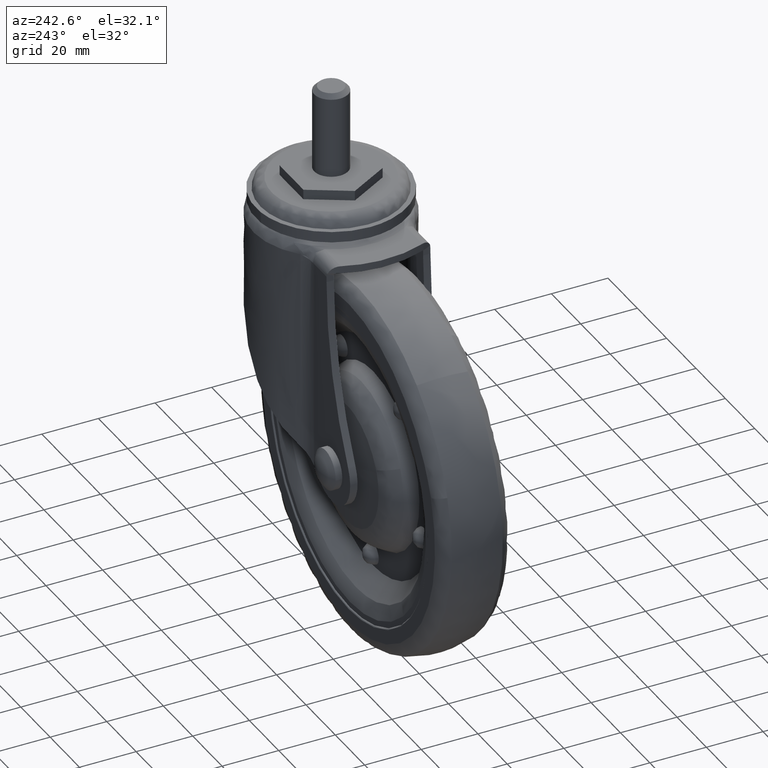
[diagram: clean part render]
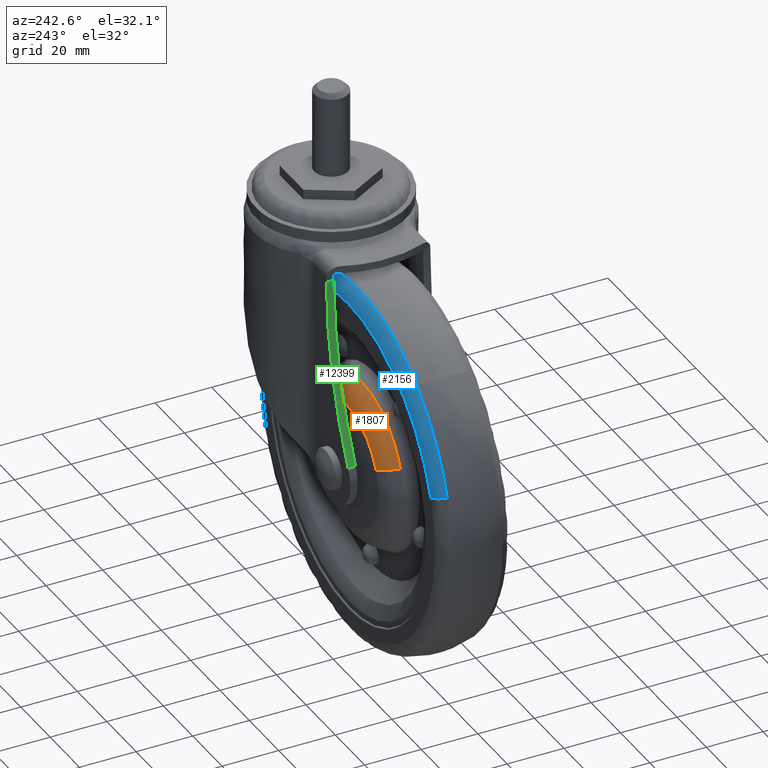
[diagram: same view with three faces highlighted in distinct colors, each labeled with its STEP entity id]
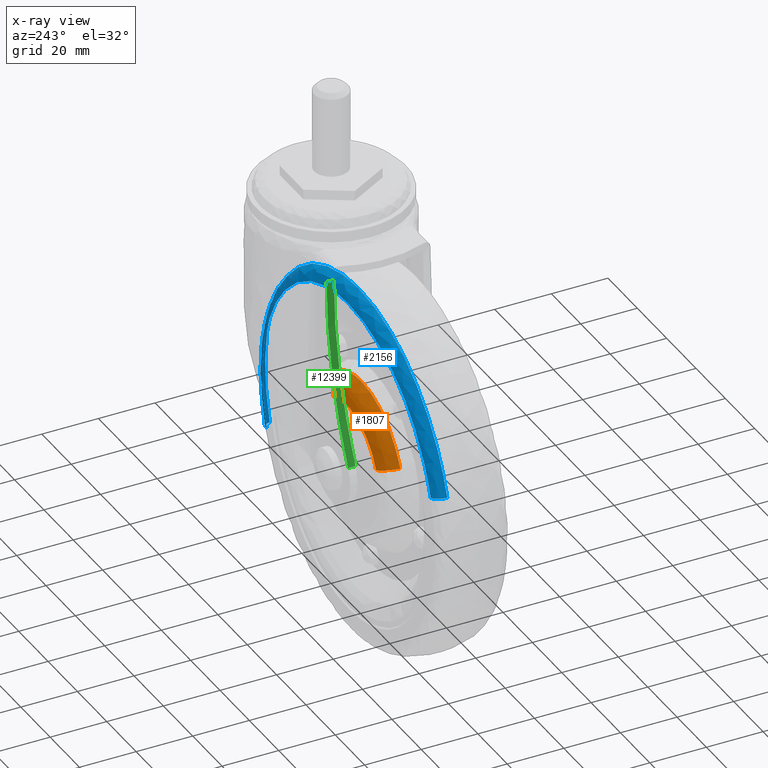
[diagram: x-ray of the same camera — body ghosted, the three highlighted faces saturated]
A machine part, auxiliary view with three faces highlighted in distinct colors.
The next image is the same camera in x-ray (body ghosted, the three faces saturated) — at least one of them is partly hidden behind the body in this view.
Their STEP definitions:

[orange] entity #1807 — the highlighted face is a freeform B-spline surface patch.
#1062=CARTESIAN_POINT('',(-23.167410312733260,8.055721030320562,-60.056697956529327));
#1063=VERTEX_POINT('',#1062);
#1077=CARTESIAN_POINT('',(-36.0,8.055721030304390,-57.056448889132753));
#1078=VERTEX_POINT('',#1077);
#1079=CARTESIAN_POINT('',(-23.167410312733264,8.055721030320562,-60.056697956529334));
#1080=CARTESIAN_POINT('',(-29.232977256312321,8.055721030304390,-57.056448889132760));
#1081=CARTESIAN_POINT('',(-36.0,8.055721030304390,-57.056448889132753));
#1089=(BOUNDED_CURVE()B_SPLINE_CURVE(2,(#1079,#1080,#1081),.UNSPECIFIED.,.F.,.U.)B_SPLINE_CURVE_WITH_KNOTS((3,3),(0.424637790836423,0.500000000000000),.UNSPECIFIED.)CURVE()GEOMETRIC_REPRESENTATION_ITEM()RATIONAL_B_SPLINE_CURVE((0.876646594193886,0.911707679924749,1.0))REPRESENTATION_ITEM(''));
#1090=EDGE_CURVE('',#1063,#1078,#1089,.T.);
#1092=CARTESIAN_POINT('',(-62.634950511475012,8.055721030587771,-74.672370692162048));
#1093=VERTEX_POINT('',#1092);
#1094=CARTESIAN_POINT('',(-36.0,8.055721030304390,-57.056448889132753));
#1095=CARTESIAN_POINT('',(-55.142916921801003,8.055721030304390,-57.056448889132760));
#1096=CARTESIAN_POINT('',(-62.634950511474997,8.055721030587771,-74.672370692162048));
#1104=(BOUNDED_CURVE()B_SPLINE_CURVE(2,(#1094,#1095,#1096),.UNSPECIFIED.,.F.,.U.)B_SPLINE_CURVE_WITH_KNOTS((3,3),(0.500000000000000,0.683550134661803),.UNSPECIFIED.)CURVE()GEOMETRIC_REPRESENTATION_ITEM()RATIONAL_B_SPLINE_CURVE((1.0,0.784957640981048,0.885683713609459))REPRESENTATION_ITEM(''));
#1105=EDGE_CURVE('',#1078,#1093,#1104,.T.);
#1666=CARTESIAN_POINT('',(-26.524519550176169,12.996321768592169,-66.843724753619142));
#1667=VERTEX_POINT('',#1666);
#1685=CARTESIAN_POINT('',(-23.167410312733260,8.055721030320562,-60.056697956529334));
#1686=CARTESIAN_POINT('',(-24.290895746203965,12.444750179472400,-62.328034753784543));
#1687=CARTESIAN_POINT('',(-26.524519550176169,12.996321768592171,-66.843724753619142));
#1695=(BOUNDED_CURVE()B_SPLINE_CURVE(2,(#1685,#1686,#1687),.UNSPECIFIED.,.F.,.U.)B_SPLINE_CURVE_WITH_KNOTS((3,3),(-1.607472699760332,-0.392717053982705),.UNSPECIFIED.)CURVE()GEOMETRIC_REPRESENTATION_ITEM()RATIONAL_B_SPLINE_CURVE((0.894848275385015,0.798179856002931,0.894818079469349))REPRESENTATION_ITEM(''));
#1696=EDGE_CURVE('',#1063,#1667,#1695,.T.);
#1702=CARTESIAN_POINT('',(-55.667192483947417,12.996301770271380,-77.635751079466559));
#1703=VERTEX_POINT('',#1702);
#1704=CARTESIAN_POINT('',(-62.634950511475004,8.055721030587771,-74.672370692162048));
#1705=CARTESIAN_POINT('',(-60.303127450765217,12.444654130910580,-75.664092663542732));
#1706=CARTESIAN_POINT('',(-55.667192483947424,12.996301770271369,-77.635751079466544));
#1714=(BOUNDED_CURVE()B_SPLINE_CURVE(2,(#1704,#1705,#1706),.UNSPECIFIED.,.F.,.U.)B_SPLINE_CURVE_WITH_KNOTS((3,3),(-1.607472699677419,-0.392740629226143),.UNSPECIFIED.)CURVE()GEOMETRIC_REPRESENTATION_ITEM()RATIONAL_B_SPLINE_CURVE((0.915440373493362,0.816549355965488,0.915405645492659))REPRESENTATION_ITEM(''));
#1715=EDGE_CURVE('',#1093,#1703,#1714,.T.);
#1750=CARTESIAN_POINT('',(-62.833485252834009,7.661874976246049,-74.587934069118347));
#1751=CARTESIAN_POINT('',(-51.421231321952348,7.661874976246048,-47.754448816284345));
#1752=CARTESIAN_POINT('',(-24.587746069118349,7.661874976246049,-59.166702747165992));
#1753=CARTESIAN_POINT('',(-23.819783990695797,7.661874976246048,-59.493316236456209));
#1754=CARTESIAN_POINT('',(-23.071758681976430,7.661874976246049,-59.863316591586738));
#1755=CARTESIAN_POINT('',(-60.440279238770252,12.673304046620975,-75.605762147881393));
#1756=CARTESIAN_POINT('',(-50.045853386651658,12.673304046620975,-51.165482909111127));
#1757=CARTESIAN_POINT('',(-25.605574147881395,12.673304046620975,-61.559908761229742));
#1758=CARTESIAN_POINT('',(-24.906104531296602,12.673304046620988,-61.857392476303950));
#1759=CARTESIAN_POINT('',(-24.224793577817749,12.673304046620983,-62.194393499936488));
#1760=CARTESIAN_POINT('',(-55.255290141560607,13.035161934860179,-77.810932726681244));
#1761=CARTESIAN_POINT('',(-47.066034868241857,13.035161934860177,-58.555642585120651));
#1762=CARTESIAN_POINT('',(-27.810744726681236,13.035161934860179,-66.744897858439373));
#1763=CARTESIAN_POINT('',(-27.259667127241183,13.035161934860179,-66.979270599854559));
#1764=CARTESIAN_POINT('',(-26.722895842523304,13.035161934860183,-67.244777078919412));
#1772=(BOUNDED_SURFACE()B_SPLINE_SURFACE(2,2,((#1750,#1755,#1760),(#1751,#1756,#1761),(#1752,#1757,#1762),(#1753,#1758,#1763),(#1754,#1759,#1764)),.UNSPECIFIED.,.F.,.F.,.U.)B_SPLINE_SURFACE_WITH_KNOTS((3,2,3),(3,3),(0.0,48.313013940032477,50.245532654638552),(0.0,10.512188026451630),.UNSPECIFIED.)GEOMETRIC_REPRESENTATION_ITEM()RATIONAL_B_SPLINE_SURFACE(((0.925813233165214,0.806175711550813,0.925780073147422),(0.654648815283365,0.570052312465470,0.654625367609920),(0.925813233165214,0.806175711550813,0.925780073147422),(0.914966666794042,0.796730784594792,0.914933895269653),(0.904987824905036,0.788041451074662,0.904955410794608)))REPRESENTATION_ITEM('')SURFACE());
#1773=CARTESIAN_POINT('',(-36.0,12.996324054549341,-64.628396190045748));
#1774=VERTEX_POINT('',#1773);
#1775=CARTESIAN_POINT('',(-36.0,12.996324054549341,-64.628396190045748));
#1776=CARTESIAN_POINT('',(-31.003289905268851,12.996323501444529,-64.628396243686765));
#1777=CARTESIAN_POINT('',(-26.524519550176176,12.996321768592168,-66.843724753619142));
#1785=(BOUNDED_CURVE()B_SPLINE_CURVE(2,(#1775,#1776,#1777),.UNSPECIFIED.,.F.,.U.)B_SPLINE_CURVE_WITH_KNOTS((3,3),(0.500000000000000,0.575361575503880),.UNSPECIFIED.)CURVE()GEOMETRIC_REPRESENTATION_ITEM()RATIONAL_B_SPLINE_CURVE((1.0,0.911708422303262,0.876647183798120))REPRESENTATION_ITEM(''));
#1786=EDGE_CURVE('',#1774,#1667,#1785,.T.);
#1787=ORIENTED_EDGE('',*,*,#1786,.F.);
#1788=CARTESIAN_POINT('',(-55.667192483947424,12.996301770271380,-77.635751079466559));
#1789=CARTESIAN_POINT('',(-50.135087837919897,12.996313165339053,-64.628296747300510));
#1790=CARTESIAN_POINT('',(-36.0,12.996324054549341,-64.628396190045748));
#1798=(BOUNDED_CURVE()B_SPLINE_CURVE(2,(#1788,#1789,#1790),.UNSPECIFIED.,.F.,.U.)B_SPLINE_CURVE_WITH_KNOTS((3,3),(0.316449907523668,0.500000000000000),.UNSPECIFIED.)CURVE()GEOMETRIC_REPRESENTATION_ITEM()RATIONAL_B_SPLINE_CURVE((0.885683667309572,0.784957690404401,1.0))REPRESENTATION_ITEM(''));
#1799=EDGE_CURVE('',#1703,#1774,#1798,.T.);
#1800=ORIENTED_EDGE('',*,*,#1799,.F.);
#1801=ORIENTED_EDGE('',*,*,#1715,.F.);
#1802=ORIENTED_EDGE('',*,*,#1105,.F.);
#1803=ORIENTED_EDGE('',*,*,#1090,.F.);
#1804=ORIENTED_EDGE('',*,*,#1696,.T.);
#1805=EDGE_LOOP('',(#1787,#1800,#1801,#1802,#1803,#1804));
#1806=FACE_OUTER_BOUND('',#1805,.T.);
#1807=ADVANCED_FACE('',(#1806),#1772,.T.);

[blue] entity #2156 — the highlighted face is a freeform B-spline surface patch.
#2022=CARTESIAN_POINT('',(19.690260852249111,12.491450252354563,-104.095050639244110));
#2023=CARTESIAN_POINT('',(37.785123491493202,12.491450252354564,-48.404789786995018));
#2024=CARTESIAN_POINT('',(-17.905137360755891,12.491450252354563,-30.309927147750891));
#2025=CARTESIAN_POINT('',(-73.595398213004998,12.491450252354564,-12.215064508506790));
#2026=CARTESIAN_POINT('',(-91.690260852249111,12.491450252354563,-67.905325360755896));
#2027=CARTESIAN_POINT('',(23.620807280034153,12.733447692078999,-105.372162590589370));
#2028=CARTESIAN_POINT('',(42.992781870623503,12.733447692079000,-45.751355310555219));
#2029=CARTESIAN_POINT('',(-16.628025409410633,12.733447692078999,-26.379380719965859));
#2030=CARTESIAN_POINT('',(-76.248832689444782,12.733447692079000,-7.007406129376503));
#2031=CARTESIAN_POINT('',(-95.620807280034171,12.733447692078999,-66.628213409410648));
#2032=CARTESIAN_POINT('',(24.580185770254303,8.718326788677942,-105.683883558204070));
#2033=CARTESIAN_POINT('',(44.263881328458375,8.718326788677945,-45.103697787949777));
#2034=CARTESIAN_POINT('',(-16.316304441795921,8.718326788677942,-25.420002229745702));
#2035=CARTESIAN_POINT('',(-76.896490212050224,8.718326788677945,-5.736306671541629));
#2036=CARTESIAN_POINT('',(-96.580185770254303,8.718326788677942,-66.316492441795930));
#2044=(BOUNDED_SURFACE()B_SPLINE_SURFACE(2,2,((#2022,#2027,#2032),(#2023,#2028,#2033),(#2024,#2029,#2034),(#2025,#2030,#2035),(#2026,#2031,#2036)),.UNSPECIFIED.,.F.,.F.,.U.)B_SPLINE_SURFACE_WITH_KNOTS((3,2,3),(3,3),(0.0,105.537932298162000,211.075864596323900),(0.0,7.205189818148854),.UNSPECIFIED.)GEOMETRIC_REPRESENTATION_ITEM()RATIONAL_B_SPLINE_SURFACE(((0.920528850618259,0.708645041052331,0.919521686709595),(0.650912192550030,0.501087713982323,0.650200020120447),(0.920528850618259,0.708645041052331,0.919521686709595),(0.650912192550030,0.501087713982323,0.650200020120447),(0.920528850618259,0.708645041052331,0.919521686709595)))REPRESENTATION_ITEM('')SURFACE());
#2045=CARTESIAN_POINT('',(19.968230423077362,12.500000000000000,-104.185368428175290));
#2046=VERTEX_POINT('',#2045);
#2047=CARTESIAN_POINT('',(-36.0,12.500000000000000,-27.151707964576509));
#2048=VERTEX_POINT('',#2047);
#2049=CARTESIAN_POINT('',(19.968230423077355,12.500000000000005,-104.185368428175310));
#2050=CARTESIAN_POINT('',(22.848480035423506,12.500000000000000,-95.320871574765462));
#2051=CARTESIAN_POINT('',(22.848480035423499,12.500000000000000,-86.000188000000009));
#2052=CARTESIAN_POINT('',(22.848480035423506,12.500000000000000,-27.151707964576506));
#2053=CARTESIAN_POINT('',(-36.0,12.500000000000000,-27.151707964576509));
#2061=(BOUNDED_CURVE()B_SPLINE_CURVE(2,(#2049,#2050,#2051,#2052,#2053),.UNSPECIFIED.,.F.,.U.)B_SPLINE_CURVE_WITH_KNOTS((3,2,3),(0.197450174523971,0.250000000000000,0.500000000000000),.UNSPECIFIED.)CURVE()GEOMETRIC_REPRESENTATION_ITEM()RATIONAL_B_SPLINE_CURVE((0.902750339221459,0.938434049872962,1.0,0.707106781186548,1.0))REPRESENTATION_ITEM(''));
#2062=EDGE_CURVE('',#2046,#2048,#2061,.T.);
#2063=ORIENTED_EDGE('',*,*,#2062,.T.);
#2064=CARTESIAN_POINT('',(-91.968230422989024,12.500000000000000,-67.815007571854949));
#2065=VERTEX_POINT('',#2064);
#2066=CARTESIAN_POINT('',(-36.0,12.500000000000000,-27.151707964576509));
#2067=CARTESIAN_POINT('',(-78.755923453607835,12.499999999999998,-27.151707964576502));
#2068=CARTESIAN_POINT('',(-91.968230422989024,12.499999999999998,-67.815007571854949));
#2076=(BOUNDED_CURVE()B_SPLINE_CURVE(2,(#2066,#2067,#2068),.UNSPECIFIED.,.F.,.U.)B_SPLINE_CURVE_WITH_KNOTS((3,3),(0.500000000000000,0.697450174523979),.UNSPECIFIED.)CURVE()GEOMETRIC_REPRESENTATION_ITEM()RATIONAL_B_SPLINE_CURVE((1.0,0.768672731313576,0.902750339221470))REPRESENTATION_ITEM(''));
#2077=EDGE_CURVE('',#2048,#2065,#2076,.T.);
#2078=ORIENTED_EDGE('',*,*,#2077,.T.);
#2079=CARTESIAN_POINT('',(-96.504480879918560,9.000000000363295,-66.341090451724710));
#2080=VERTEX_POINT('',#2079);
#2081=CARTESIAN_POINT('',(-91.968230422989024,12.500000000000002,-67.815007571854949));
#2082=CARTESIAN_POINT('',(-95.457653853580979,12.499999982476316,-66.681225171173182));
#2083=CARTESIAN_POINT('',(-96.504480879918560,9.000000000363295,-66.341090451724710));
#2091=(BOUNDED_CURVE()B_SPLINE_CURVE(2,(#2081,#2082,#2083),.UNSPECIFIED.,.F.,.U.)B_SPLINE_CURVE_WITH_KNOTS((3,3),(-1.687756063710511,-0.315838045665405),.UNSPECIFIED.)CURVE()GEOMETRIC_REPRESENTATION_ITEM()RATIONAL_B_SPLINE_CURVE((0.902155870665288,0.726972180281359,0.901240387142366))REPRESENTATION_ITEM(''));
#2092=EDGE_CURVE('',#2065,#2080,#2091,.T.);
#2093=ORIENTED_EDGE('',*,*,#2092,.T.);
#2094=CARTESIAN_POINT('',(-75.680395793601491,8.999999999989424,-36.273550142216607));
#2095=VERTEX_POINT('',#2094);
#2096=CARTESIAN_POINT('',(-75.680395793601491,8.999999999989424,-36.273550142216607));
#2097=CARTESIAN_POINT('',(-90.604381707284958,9.0,-48.182452360117644));
#2098=CARTESIAN_POINT('',(-96.504480879918560,9.000000000363295,-66.341090451724725));
#2106=(BOUNDED_CURVE()B_SPLINE_CURVE(2,(#2096,#2097,#2098),.UNSPECIFIED.,.F.,.U.)B_SPLINE_CURVE_WITH_KNOTS((3,3),(0.608098577602661,0.697450174525912),.UNSPECIFIED.)CURVE()GEOMETRIC_REPRESENTATION_ITEM()RATIONAL_B_SPLINE_CURVE((0.856230744649401,0.842076559586161,0.902750339224095))REPRESENTATION_ITEM(''));
#2107=EDGE_CURVE('',#2095,#2080,#2106,.T.);
#2108=ORIENTED_EDGE('',*,*,#2107,.F.);
#2109=CARTESIAN_POINT('',(-36.0,9.0,-22.382011957491709));
#2110=VERTEX_POINT('',#2109);
#2111=CARTESIAN_POINT('',(-36.0,9.0,-22.382011957491709));
#2112=CARTESIAN_POINT('',(-58.271812164731372,9.0,-22.382011957491706));
#2113=CARTESIAN_POINT('',(-75.680395793601491,8.999999999989424,-36.273550142216607));
#2121=(BOUNDED_CURVE()B_SPLINE_CURVE(2,(#2111,#2112,#2113),.UNSPECIFIED.,.F.,.U.)B_SPLINE_CURVE_WITH_KNOTS((3,3),(0.500000000000000,0.608098577602662),.UNSPECIFIED.)CURVE()GEOMETRIC_REPRESENTATION_ITEM()RATIONAL_B_SPLINE_CURVE((1.0,0.873354638627202,0.856230744649401))REPRESENTATION_ITEM(''));
#2122=EDGE_CURVE('',#2110,#2095,#2121,.T.);
#2123=ORIENTED_EDGE('',*,*,#2122,.F.);
#2124=CARTESIAN_POINT('',(24.504480880001211,9.000000000095877,-105.659285548293100));
#2125=VERTEX_POINT('',#2124);
#2126=CARTESIAN_POINT('',(24.504480880001211,9.000000000095877,-105.659285548293070));
#2127=CARTESIAN_POINT('',(27.618176042508306,9.000000000000002,-96.076317206993053));
#2128=CARTESIAN_POINT('',(27.618176042508299,9.0,-86.000188000000009));
#2129=CARTESIAN_POINT('',(27.618176042508303,9.000000000000002,-22.382011957491709));
#2130=CARTESIAN_POINT('',(-36.0,9.0,-22.382011957491709));
#2138=(BOUNDED_CURVE()B_SPLINE_CURVE(2,(#2126,#2127,#2128,#2129,#2130),.UNSPECIFIED.,.F.,.U.)B_SPLINE_CURVE_WITH_KNOTS((3,2,3),(0.197450174525956,0.250000000000000,0.500000000000000),.UNSPECIFIED.)CURVE()GEOMETRIC_REPRESENTATION_ITEM()RATIONAL_B_SPLINE_CURVE((0.902750339224154,0.938434049875288,1.0,0.707106781186548,1.0))REPRESENTATION_ITEM(''));
#2139=EDGE_CURVE('',#2125,#2110,#2138,.T.);
#2140=ORIENTED_EDGE('',*,*,#2139,.F.);
#2141=CARTESIAN_POINT('',(19.968230423077362,12.500000000000002,-104.185368428175310));
#2142=CARTESIAN_POINT('',(23.457653854032127,12.499999982339297,-105.319150828973450));
#2143=CARTESIAN_POINT('',(24.504480880001214,9.000000000095877,-105.659285548293070));
#2151=(BOUNDED_CURVE()B_SPLINE_CURVE(2,(#2141,#2142,#2143),.UNSPECIFIED.,.F.,.U.)B_SPLINE_CURVE_WITH_KNOTS((3,3),(-1.687756063667187,-0.315838045535455),.UNSPECIFIED.)CURVE()GEOMETRIC_REPRESENTATION_ITEM()RATIONAL_B_SPLINE_CURVE((0.902155870654224,0.726972180270268,0.901240387175380))REPRESENTATION_ITEM(''));
#2152=EDGE_CURVE('',#2046,#2125,#2151,.T.);
#2153=ORIENTED_EDGE('',*,*,#2152,.F.);
#2154=EDGE_LOOP('',(#2063,#2078,#2093,#2108,#2123,#2140,#2153));
#2155=FACE_OUTER_BOUND('',#2154,.T.);
#2156=ADVANCED_FACE('',(#2155),#2044,.T.);

[green] entity #12399 — the highlighted face is a freeform B-spline surface patch.
#12272=CARTESIAN_POINT('',(-32.244650000000000,18.351751272467698,-18.512373999999902));
#12273=VERTEX_POINT('',#12272);
#12279=CARTESIAN_POINT('',(-32.244650000000000,15.751749964347701,-18.512373999999902));
#12280=VERTEX_POINT('',#12279);
#12281=CARTESIAN_POINT('',(-32.244650000000000,18.351751272467698,-18.512373999999902));
#12282=CARTESIAN_POINT('',(-32.244650000000000,15.751749964347701,-18.512373999999902));
#12283=QUASI_UNIFORM_CURVE('',1,(#12281,#12282),.UNSPECIFIED.,.F.,.U.);
#12284=EDGE_CURVE('',#12273,#12280,#12283,.T.);
#12347=CARTESIAN_POINT('',(-32.281144212376262,18.431911951460883,-15.405785944602764));
#12348=CARTESIAN_POINT('',(-32.281144212376262,15.684746033110663,-15.405785944602764));
#12349=CARTESIAN_POINT('',(-31.448345620667293,18.431911951460886,-50.847092380055990));
#12350=CARTESIAN_POINT('',(-31.448345620667293,15.684746033110674,-50.847092380055990));
#12351=CARTESIAN_POINT('',(-48.455076643469759,18.431911951460894,-81.952571885508036));
#12352=CARTESIAN_POINT('',(-48.455076643469759,15.684746033110672,-81.952571885508036));
#12360=(BOUNDED_SURFACE()B_SPLINE_SURFACE(1,2,((#12347,#12349,#12351),(#12348,#12350,#12352)),.UNSPECIFIED.,.F.,.F.,.U.)B_SPLINE_SURFACE_WITH_KNOTS((2,2),(3,3),(0.0,2.747165918350220),(1.978729626655579,71.658076861381531),.UNSPECIFIED.)GEOMETRIC_REPRESENTATION_ITEM()RATIONAL_B_SPLINE_SURFACE(((0.997867397344570,0.961282430549936,0.992587825449436),(0.997867397344570,0.961282430549936,0.992587825449436)))REPRESENTATION_ITEM('')SURFACE());
#12361=CARTESIAN_POINT('',(-46.989545145059900,18.366542146897149,-79.195251520684394));
#12362=VERTEX_POINT('',#12361);
#12363=CARTESIAN_POINT('',(-46.989545145059900,15.766540838777150,-79.195251520684394));
#12364=VERTEX_POINT('',#12363);
#12365=CARTESIAN_POINT('',(-46.989545145059900,18.366542146897149,-79.195251520684394));
#12366=CARTESIAN_POINT('',(-46.989545145059900,15.766540838777150,-79.195251520684394));
#12367=QUASI_UNIFORM_CURVE('',1,(#12365,#12366),.UNSPECIFIED.,.F.,.U.);
#12368=EDGE_CURVE('',#12362,#12364,#12367,.T.);
#12369=ORIENTED_EDGE('',*,*,#12368,.T.);
#12370=CARTESIAN_POINT('',(-46.989545145060070,15.766540838777150,-79.195251520684423));
#12371=CARTESIAN_POINT('',(-32.244650000000100,15.751749964347695,-50.645190672214468));
#12372=CARTESIAN_POINT('',(-32.244650000000100,15.751749964347690,-18.512373999999930));
#12380=(BOUNDED_CURVE()B_SPLINE_CURVE(2,(#12370,#12371,#12372),.UNSPECIFIED.,.F.,.U.)CURVE()GEOMETRIC_REPRESENTATION_ITEM()QUASI_UNIFORM_CURVE()RATIONAL_B_SPLINE_CURVE((1.0,0.971725696049033,1.0))REPRESENTATION_ITEM(''));
#12381=EDGE_CURVE('',#12364,#12280,#12380,.T.);
#12382=ORIENTED_EDGE('',*,*,#12381,.T.);
#12383=ORIENTED_EDGE('',*,*,#12284,.F.);
#12384=CARTESIAN_POINT('',(-46.989545145060070,18.366542146897139,-79.195251520684423));
#12385=CARTESIAN_POINT('',(-32.244650000000100,18.351751272467691,-50.645190672214468));
#12386=CARTESIAN_POINT('',(-32.244650000000100,18.351751272467691,-18.512373999999930));
#12394=(BOUNDED_CURVE()B_SPLINE_CURVE(2,(#12384,#12385,#12386),.UNSPECIFIED.,.F.,.U.)CURVE()GEOMETRIC_REPRESENTATION_ITEM()QUASI_UNIFORM_CURVE()RATIONAL_B_SPLINE_CURVE((1.0,0.971725696049033,1.0))REPRESENTATION_ITEM(''));
#12395=EDGE_CURVE('',#12362,#12273,#12394,.T.);
#12396=ORIENTED_EDGE('',*,*,#12395,.F.);
#12397=EDGE_LOOP('',(#12369,#12382,#12383,#12396));
#12398=FACE_OUTER_BOUND('',#12397,.T.);
#12399=ADVANCED_FACE('',(#12398),#12360,.F.);